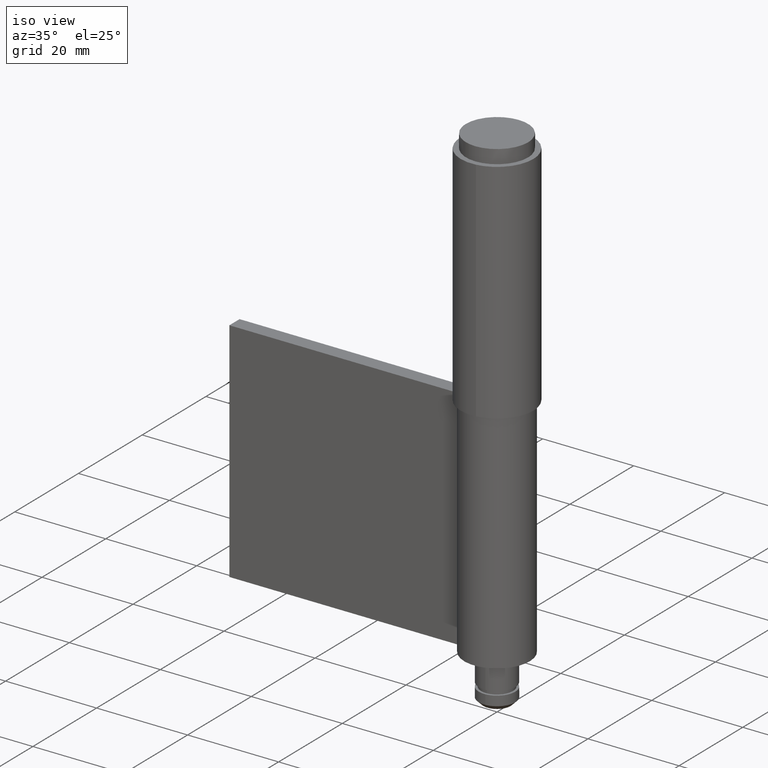
[diagram: clean part render]
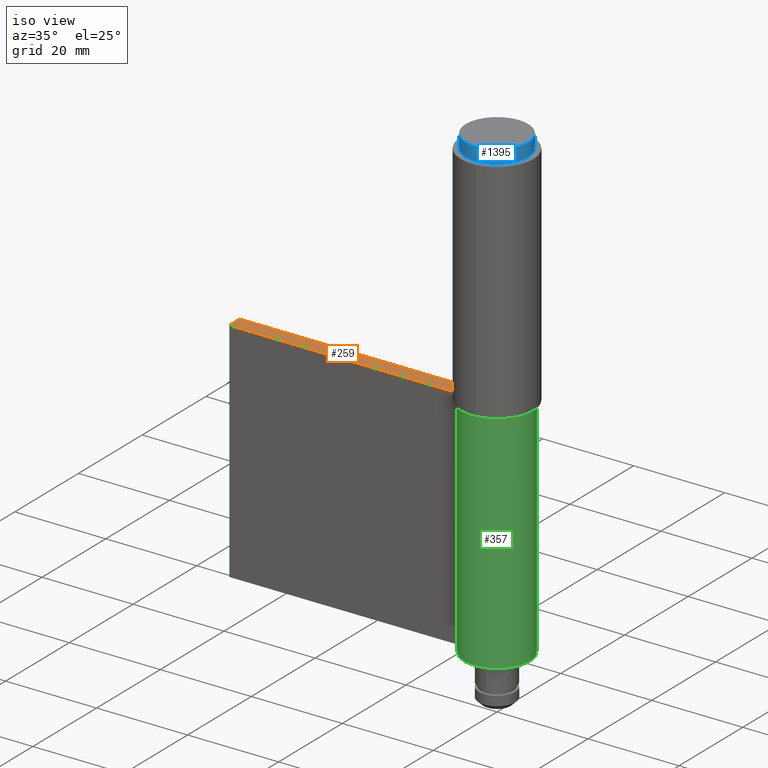
[diagram: same view with three faces highlighted in distinct colors, each labeled with its STEP entity id]
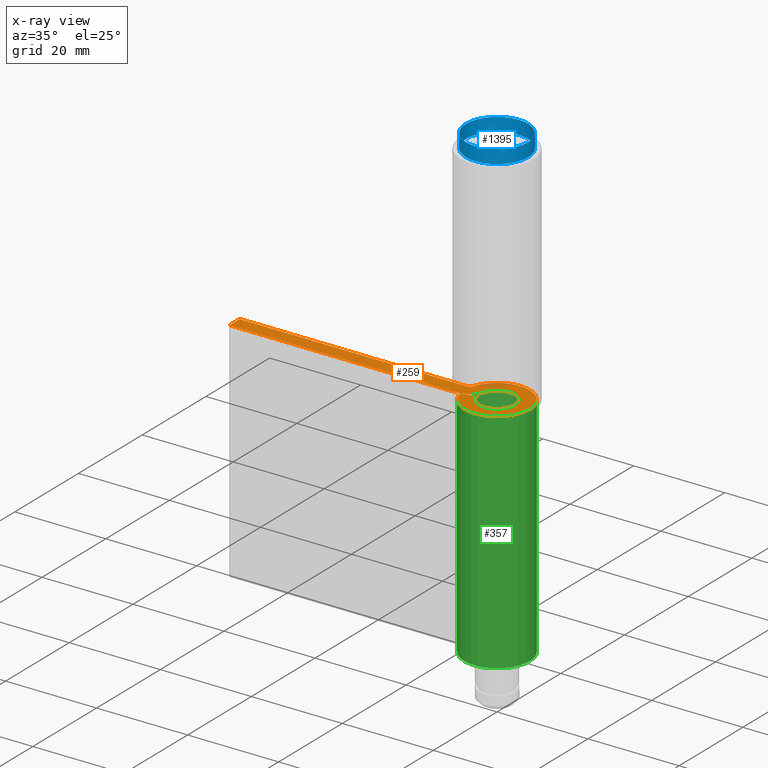
[diagram: x-ray of the same camera — body ghosted, the three highlighted faces saturated]
A machine part, iso view with three faces highlighted in distinct colors.
The next image is the same camera in x-ray (body ghosted, the three faces saturated) — at least one of them is partly hidden behind the body in this view.
Their STEP definitions:

[orange] entity #259 — the highlighted face is a freeform B-spline surface patch.
#152=CARTESIAN_POINT('',(-60.941293195075907,-7.917410930824219,60.0));
#153=CARTESIAN_POINT('',(10.432118169757750,-7.917410930824219,60.0));
#154=CARTESIAN_POINT('',(-60.941293195075907,7.888028291669615,60.0));
#155=CARTESIAN_POINT('',(10.432118169757750,7.888028291669615,60.0));
#156=B_SPLINE_SURFACE_WITH_KNOTS('',1,1,((#152,#154),(#153,#155)),.UNSPECIFIED.,.F.,.F.,.U.,(2,2),(2,2),(0.0,71.373411364833657),(0.0,15.805439222493840),.UNSPECIFIED.);
#157=CARTESIAN_POINT('',(-57.699996999999897,-1.599998000000000,60.0));
#158=VERTEX_POINT('',#157);
#159=CARTESIAN_POINT('',(-7.782682549319230,-1.599998000000000,60.0));
#160=VERTEX_POINT('',#159);
#161=CARTESIAN_POINT('',(-57.699996999999897,-1.599998000000000,60.0));
#162=CARTESIAN_POINT('',(-7.782682549319230,-1.599998000000000,60.0));
#163=QUASI_UNIFORM_CURVE('',1,(#161,#162),.UNSPECIFIED.,.F.,.U.);
#164=EDGE_CURVE('',#158,#160,#163,.T.);
#165=ORIENTED_EDGE('',*,*,#164,.T.);
#166=CARTESIAN_POINT('',(-3.793601311270450,1.268291167197346,60.0));
#167=VERTEX_POINT('',#166);
#168=CARTESIAN_POINT('',(-3.793601311270512,1.268291167197366,60.0));
#169=CARTESIAN_POINT('',(-4.753936112665260,-1.604178070194235,60.0));
#170=CARTESIAN_POINT('',(-7.782682549319230,-1.599997999999998,60.0));
#178=(BOUNDED_CURVE()B_SPLINE_CURVE(2,(#168,#169,#170),.UNSPECIFIED.,.F.,.U.)CURVE()GEOMETRIC_REPRESENTATION_ITEM()QUASI_UNIFORM_CURVE()RATIONAL_B_SPLINE_CURVE((1.0,0.811099203511080,1.0))REPRESENTATION_ITEM(''));
#179=EDGE_CURVE('',#167,#160,#178,.T.);
#180=ORIENTED_EDGE('',*,*,#179,.F.);
#181=CARTESIAN_POINT('',(-3.902154564155285,-0.879312093310240,60.0));
#182=VERTEX_POINT('',#181);
#183=CARTESIAN_POINT('',(-3.793601311270450,1.268291167197346,60.0));
#184=CARTESIAN_POINT('',(-2.687121172881582,4.577881124253930,60.0));
#185=CARTESIAN_POINT('',(0.741972256834321,3.930581218341711,60.0));
#186=CARTESIAN_POINT('',(4.171065686550227,3.283281312429491,60.0));
#187=CARTESIAN_POINT('',(3.994901805377227,-0.201921714993140,60.0));
#188=CARTESIAN_POINT('',(3.818737924204226,-3.687124742415772,60.0));
#189=CARTESIAN_POINT('',(0.341851068631430,-3.985363680097513,60.0));
#190=CARTESIAN_POINT('',(-3.135035786941367,-4.283602617779254,60.0));
#191=CARTESIAN_POINT('',(-3.902154564155285,-0.879312093310240,60.0));
#199=(BOUNDED_CURVE()B_SPLINE_CURVE(2,(#183,#184,#185,#186,#187,#188,#189,#190,#191),.UNSPECIFIED.,.F.,.U.)B_SPLINE_CURVE_WITH_KNOTS((3,2,2,2,3),(0.0,0.250000000000000,0.500000000000000,0.750000000000000,1.0),.UNSPECIFIED.)CURVE()GEOMETRIC_REPRESENTATION_ITEM()RATIONAL_B_SPLINE_CURVE((1.0,0.753541793139221,1.0,0.753541793139221,1.0,0.753541793139221,1.0,0.753541793139221,1.0))REPRESENTATION_ITEM(''));
#200=EDGE_CURVE('',#167,#182,#199,.T.);
#201=ORIENTED_EDGE('',*,*,#200,.T.);
#202=CARTESIAN_POINT('',(-7.023878215479560,-1.582761767958435,60.0));
#203=VERTEX_POINT('',#202);
#204=CARTESIAN_POINT('',(-3.902154564155285,-0.879312093310240,60.0));
#205=CARTESIAN_POINT('',(-7.023878215479560,-1.582761767958435,60.0));
#206=QUASI_UNIFORM_CURVE('',1,(#204,#205),.UNSPECIFIED.,.F.,.U.);
#207=EDGE_CURVE('',#182,#203,#206,.T.);
#208=ORIENTED_EDGE('',*,*,#207,.T.);
#209=CARTESIAN_POINT('',(-6.828487906865320,2.282926390796095,60.0));
#210=VERTEX_POINT('',#209);
#211=CARTESIAN_POINT('',(-6.828487906865321,2.282926390796094,60.0));
#212=CARTESIAN_POINT('',(-4.836832219476578,8.240191080014196,59.999999999999993));
#213=CARTESIAN_POINT('',(1.335537064383799,7.075050582833825,60.0));
#214=CARTESIAN_POINT('',(7.507906348244184,5.909910085653453,59.999999999999993));
#215=CARTESIAN_POINT('',(7.190820400486817,-0.363458344165383,60.0));
#216=CARTESIAN_POINT('',(6.873734452729448,-6.636826773984220,59.999999999999993));
#217=CARTESIAN_POINT('',(0.615339445430057,-7.173657182142027,60.0));
#218=CARTESIAN_POINT('',(-5.643055561869331,-7.710487590299833,59.999999999999993));
#219=CARTESIAN_POINT('',(-7.023878215479557,-1.582761767958434,60.0));
#227=(BOUNDED_CURVE()B_SPLINE_CURVE(2,(#211,#212,#213,#214,#215,#216,#217,#218,#219),.UNSPECIFIED.,.F.,.U.)B_SPLINE_CURVE_WITH_KNOTS((3,2,2,2,3),(0.0,0.250000000000000,0.500000000000000,0.750000000000000,1.0),.UNSPECIFIED.)CURVE()GEOMETRIC_REPRESENTATION_ITEM()RATIONAL_B_SPLINE_CURVE((1.0,0.753541797853065,1.0,0.753541797853065,1.0,0.753541797853065,1.0,0.753541797853065,1.0))REPRESENTATION_ITEM(''));
#228=EDGE_CURVE('',#210,#203,#227,.T.);
#229=ORIENTED_EDGE('',*,*,#228,.F.);
#230=CARTESIAN_POINT('',(-7.776886000000000,1.599998000000000,60.0));
#231=VERTEX_POINT('',#230);
#232=CARTESIAN_POINT('',(-6.828487906865320,2.282926390796095,60.0));
#233=CARTESIAN_POINT('',(-7.056804871374498,1.599998527259056,60.0));
#234=CARTESIAN_POINT('',(-7.776886000000000,1.599998000000000,60.0));
#242=(BOUNDED_CURVE()B_SPLINE_CURVE(2,(#232,#233,#234),.UNSPECIFIED.,.F.,.U.)CURVE()GEOMETRIC_REPRESENTATION_ITEM()QUASI_UNIFORM_CURVE()RATIONAL_B_SPLINE_CURVE((1.0,0.811502515005966,1.0))REPRESENTATION_ITEM(''));
#243=EDGE_CURVE('',#210,#231,#242,.T.);
#244=ORIENTED_EDGE('',*,*,#243,.T.);
#245=CARTESIAN_POINT('',(-57.699996999999897,1.599998000000000,60.0));
#246=VERTEX_POINT('',#245);
#247=CARTESIAN_POINT('',(-7.776886000000000,1.599998000000000,60.0));
#248=CARTESIAN_POINT('',(-57.699996999999897,1.599998000000000,60.0));
#249=QUASI_UNIFORM_CURVE('',1,(#247,#248),.UNSPECIFIED.,.F.,.U.);
#250=EDGE_CURVE('',#231,#246,#249,.T.);
#251=ORIENTED_EDGE('',*,*,#250,.T.);
#252=CARTESIAN_POINT('',(-57.699996999999897,1.599998000000000,60.0));
#253=CARTESIAN_POINT('',(-57.699996999999897,-1.599998000000000,60.0));
#254=QUASI_UNIFORM_CURVE('',1,(#252,#253),.UNSPECIFIED.,.F.,.U.);
#255=EDGE_CURVE('',#246,#158,#254,.T.);
#256=ORIENTED_EDGE('',*,*,#255,.T.);
#257=EDGE_LOOP('',(#165,#180,#201,#208,#229,#244,#251,#256));
#258=FACE_OUTER_BOUND('',#257,.T.);
#259=ADVANCED_FACE('',(#258),#156,.T.);

[blue] entity #1395 — the highlighted face is a freeform B-spline surface patch.
#1210=CARTESIAN_POINT('',(6.837395000000057,0.0,113.0));
#1211=VERTEX_POINT('',#1210);
#1212=CARTESIAN_POINT('',(-6.837394999999942,0.0,113.0));
#1213=VERTEX_POINT('',#1212);
#1214=CARTESIAN_POINT('',(6.837395000000057,0.0,113.0));
#1215=CARTESIAN_POINT('',(6.837395000000054,-6.837394999999999,113.0));
#1216=CARTESIAN_POINT('',(5.684342E-014,-6.837395000000000,113.0));
#1217=CARTESIAN_POINT('',(-6.837394999999941,-6.837394999999999,113.0));
#1218=CARTESIAN_POINT('',(-6.837394999999942,0.0,113.0));
#1226=(BOUNDED_CURVE()B_SPLINE_CURVE(2,(#1214,#1215,#1216,#1217,#1218),.UNSPECIFIED.,.F.,.U.)B_SPLINE_CURVE_WITH_KNOTS((3,2,3),(0.500000000000000,0.750000000000000,1.0),.UNSPECIFIED.)CURVE()GEOMETRIC_REPRESENTATION_ITEM()RATIONAL_B_SPLINE_CURVE((1.0,0.707106781186548,1.0,0.707106781186548,1.0))REPRESENTATION_ITEM(''));
#1227=EDGE_CURVE('',#1211,#1213,#1226,.T.);
#1229=CARTESIAN_POINT('',(-6.837394999999942,0.0,113.0));
#1230=CARTESIAN_POINT('',(-6.837394999999941,6.837394999999999,113.0));
#1231=CARTESIAN_POINT('',(5.684342E-014,6.837395000000000,113.0));
#1232=CARTESIAN_POINT('',(6.837395000000054,6.837394999999999,113.0));
#1233=CARTESIAN_POINT('',(6.837395000000057,0.0,113.0));
#1241=(BOUNDED_CURVE()B_SPLINE_CURVE(2,(#1229,#1230,#1231,#1232,#1233),.UNSPECIFIED.,.F.,.U.)B_SPLINE_CURVE_WITH_KNOTS((3,2,3),(0.0,0.250000000000000,0.500000000000000),.UNSPECIFIED.)CURVE()GEOMETRIC_REPRESENTATION_ITEM()RATIONAL_B_SPLINE_CURVE((1.0,0.707106781186548,1.0,0.707106781186548,1.0))REPRESENTATION_ITEM(''));
#1242=EDGE_CURVE('',#1213,#1211,#1241,.T.);
#1300=CARTESIAN_POINT('',(-6.837397165588673,0.0,110.0));
#1301=VERTEX_POINT('',#1300);
#1302=CARTESIAN_POINT('',(6.837397165588787,0.0,110.0));
#1303=VERTEX_POINT('',#1302);
#1304=CARTESIAN_POINT('',(-6.837397165588673,0.0,110.0));
#1305=CARTESIAN_POINT('',(-6.837397165588672,6.837397165588729,110.0));
#1306=CARTESIAN_POINT('',(5.684342E-014,6.837397165588730,110.0));
#1307=CARTESIAN_POINT('',(6.837397165588786,6.837397165588729,110.0));
#1308=CARTESIAN_POINT('',(6.837397165588787,0.0,110.0));
#1316=(BOUNDED_CURVE()B_SPLINE_CURVE(2,(#1304,#1305,#1306,#1307,#1308),.UNSPECIFIED.,.F.,.U.)B_SPLINE_CURVE_WITH_KNOTS((3,2,3),(0.0,0.250000000000000,0.500000000000000),.UNSPECIFIED.)CURVE()GEOMETRIC_REPRESENTATION_ITEM()RATIONAL_B_SPLINE_CURVE((1.0,0.707106781186548,1.0,0.707106781186548,1.0))REPRESENTATION_ITEM(''));
#1317=EDGE_CURVE('',#1301,#1303,#1316,.T.);
#1319=CARTESIAN_POINT('',(6.837397165588787,0.0,110.0));
#1320=CARTESIAN_POINT('',(6.837397165588786,-6.837397165588729,110.0));
#1321=CARTESIAN_POINT('',(5.684342E-014,-6.837397165588730,110.0));
#1322=CARTESIAN_POINT('',(-6.837397165588672,-6.837397165588729,110.0));
#1323=CARTESIAN_POINT('',(-6.837397165588673,0.0,110.0));
#1331=(BOUNDED_CURVE()B_SPLINE_CURVE(2,(#1319,#1320,#1321,#1322,#1323),.UNSPECIFIED.,.F.,.U.)B_SPLINE_CURVE_WITH_KNOTS((3,2,3),(0.500000000000000,0.750000000000000,1.0),.UNSPECIFIED.)CURVE()GEOMETRIC_REPRESENTATION_ITEM()RATIONAL_B_SPLINE_CURVE((1.0,0.707106781186548,1.0,0.707106781186548,1.0))REPRESENTATION_ITEM(''));
#1332=EDGE_CURVE('',#1303,#1301,#1331,.T.);
#1343=CARTESIAN_POINT('',(-4.166826266324718,-4.166826266324718,107.721757322175720));
#1344=CARTESIAN_POINT('',(-3.869966882065834,-5.159955842754445,108.489637305699470));
#1345=CARTESIAN_POINT('',(-1.693658975597973,-6.774635902391893,109.738095238095240));
#1346=CARTESIAN_POINT('',(1.693658975597975,-6.774635902391893,109.738095238095240));
#1347=CARTESIAN_POINT('',(3.869966882065837,-5.159955842754445,108.489637305699470));
#1348=CARTESIAN_POINT('',(4.166826266324723,-4.166826266324718,107.721757322175720));
#1349=CARTESIAN_POINT('',(-5.159955842754445,-3.869966882065834,108.489637305699470));
#1350=CARTESIAN_POINT('',(-5.080976926793920,-5.080976926793920,109.738095238095240));
#1351=CARTESIAN_POINT('',(-2.465028410028736,-7.395085230086206,112.123762376237620));
#1352=CARTESIAN_POINT('',(2.465028410028736,-7.395085230086206,112.123762376237620));
#1353=CARTESIAN_POINT('',(5.080976926793923,-5.080976926793920,109.738095238095240));
#1354=CARTESIAN_POINT('',(5.159955842754448,-3.869966882065834,108.489637305699470));
#1355=CARTESIAN_POINT('',(-6.774635902391893,-1.693658975597973,109.738095238095240));
#1356=CARTESIAN_POINT('',(-7.395085230086211,-2.465028410028736,112.123762376237620));
#1357=CARTESIAN_POINT('',(-4.526688534780054,-4.526688534780053,118.500000000000000));
#1358=CARTESIAN_POINT('',(4.526688534780049,-4.526688534780053,118.500000000000000));
#1359=CARTESIAN_POINT('',(7.395085230086206,-2.465028410028736,112.123762376237620));
#1360=CARTESIAN_POINT('',(6.774635902391896,-1.693658975597973,109.738095238095240));
#1361=CARTESIAN_POINT('',(-6.774635902391893,1.693658975597975,109.738095238095240));
#1362=CARTESIAN_POINT('',(-7.395085230086211,2.465028410028737,112.123762376237620));
#1363=CARTESIAN_POINT('',(-4.526688534780054,4.526688534780050,118.500000000000000));
#1364=CARTESIAN_POINT('',(4.526688534780049,4.526688534780050,118.500000000000000));
#1365=CARTESIAN_POINT('',(7.395085230086206,2.465028410028737,112.123762376237620));
#1366=CARTESIAN_POINT('',(6.774635902391896,1.693658975597975,109.738095238095240));
#1367=CARTESIAN_POINT('',(-5.159955842754445,3.869966882065837,108.489637305699470));
#1368=CARTESIAN_POINT('',(-5.080976926793920,5.080976926793923,109.738095238095240));
#1369=CARTESIAN_POINT('',(-2.465028410028736,7.395085230086206,112.123762376237620));
#1370=CARTESIAN_POINT('',(2.465028410028736,7.395085230086206,112.123762376237620));
#1371=CARTESIAN_POINT('',(5.080976926793923,5.080976926793923,109.738095238095240));
#1372=CARTESIAN_POINT('',(5.159955842754448,3.869966882065837,108.489637305699470));
#1373=CARTESIAN_POINT('',(-4.166826266324718,4.166826266324721,107.721757322175720));
#1374=CARTESIAN_POINT('',(-3.869966882065834,5.159955842754448,108.489637305699470));
#1375=CARTESIAN_POINT('',(-1.693658975597973,6.774635902391896,109.738095238095240));
#1376=CARTESIAN_POINT('',(1.693658975597975,6.774635902391896,109.738095238095240));
#1377=CARTESIAN_POINT('',(3.869966882065837,5.159955842754448,108.489637305699470));
#1378=CARTESIAN_POINT('',(4.166826266324723,4.166826266324721,107.721757322175720));
#1386=(BOUNDED_SURFACE()B_SPLINE_SURFACE(2,2,((#1343,#1349,#1355,#1361,#1367,#1373),(#1344,#1350,#1356,#1362,#1368,#1374),(#1345,#1351,#1357,#1363,#1369,#1375),(#1346,#1352,#1358,#1364,#1370,#1376),(#1347,#1353,#1359,#1365,#1371,#1377),(#1348,#1354,#1360,#1366,#1372,#1378)),.UNSPECIFIED.,.F.,.F.,.U.)B_SPLINE_SURFACE_WITH_KNOTS((3,1,1,1,3),(3,1,1,1,3),(0.0,7.487755471064719,14.975510942129439,22.463266413194159,29.951021884258878),(0.0,7.487755471064719,14.975510942129439,22.463266413194159,29.951021884258878),.UNSPECIFIED.)GEOMETRIC_REPRESENTATION_ITEM()RATIONAL_B_SPLINE_SURFACE(((4.345454545454560,3.509090909090920,2.672727272727280,2.672727272727280,3.509090909090920,4.345454545454560),(3.509090909090920,2.672727272727280,1.836363636363640,1.836363636363640,2.672727272727280,3.509090909090920),(2.672727272727280,1.836363636363640,1.0,1.0,1.836363636363640,2.672727272727280),(2.672727272727280,1.836363636363640,1.0,1.0,1.836363636363640,2.672727272727280),(3.509090909090920,2.672727272727280,1.836363636363640,1.836363636363640,2.672727272727280,3.509090909090920),(4.345454545454560,3.509090909090920,2.672727272727280,2.672727272727280,3.509090909090920,4.345454545454560)))REPRESENTATION_ITEM('')SURFACE());
#1387=ORIENTED_EDGE('',*,*,#1332,.F.);
#1388=ORIENTED_EDGE('',*,*,#1317,.F.);
#1389=EDGE_LOOP('',(#1387,#1388));
#1390=FACE_OUTER_BOUND('',#1389,.T.);
#1391=ORIENTED_EDGE('',*,*,#1242,.T.);
#1392=ORIENTED_EDGE('',*,*,#1227,.T.);
#1393=EDGE_LOOP('',(#1391,#1392));
#1394=FACE_BOUND('',#1393,.T.);
#1395=ADVANCED_FACE('',(#1390,#1394),#1386,.T.);

[green] entity #357 — the highlighted face is a freeform B-spline surface patch.
#72=CARTESIAN_POINT('',(-6.828487906865320,2.282926390796095,10.0));
#73=VERTEX_POINT('',#72);
#87=CARTESIAN_POINT('',(-7.023878215479560,-1.582761767958435,10.0));
#88=VERTEX_POINT('',#87);
#89=CARTESIAN_POINT('',(-6.828487906865321,2.282926390796094,10.0));
#90=CARTESIAN_POINT('',(-4.836832219476578,8.240191080014196,10.0));
#91=CARTESIAN_POINT('',(1.335537064383799,7.075050582833825,10.0));
#92=CARTESIAN_POINT('',(7.507906348244184,5.909910085653453,10.0));
#93=CARTESIAN_POINT('',(7.190820400486817,-0.363458344165383,10.0));
#94=CARTESIAN_POINT('',(6.873734452729448,-6.636826773984220,10.0));
#95=CARTESIAN_POINT('',(0.615339445430057,-7.173657182142027,10.0));
#96=CARTESIAN_POINT('',(-5.643055561869331,-7.710487590299833,10.0));
#97=CARTESIAN_POINT('',(-7.023878215479557,-1.582761767958434,10.0));
#105=(BOUNDED_CURVE()B_SPLINE_CURVE(2,(#89,#90,#91,#92,#93,#94,#95,#96,#97),.UNSPECIFIED.,.F.,.U.)B_SPLINE_CURVE_WITH_KNOTS((3,2,2,2,3),(0.0,0.250000000000000,0.500000000000000,0.750000000000000,1.0),.UNSPECIFIED.)CURVE()GEOMETRIC_REPRESENTATION_ITEM()RATIONAL_B_SPLINE_CURVE((1.0,0.753541797853065,1.0,0.753541797853065,1.0,0.753541797853065,1.0,0.753541797853065,1.0))REPRESENTATION_ITEM(''));
#106=EDGE_CURVE('',#73,#88,#105,.T.);
#202=CARTESIAN_POINT('',(-7.023878215479560,-1.582761767958435,60.0));
#203=VERTEX_POINT('',#202);
#209=CARTESIAN_POINT('',(-6.828487906865320,2.282926390796095,60.0));
#210=VERTEX_POINT('',#209);
#211=CARTESIAN_POINT('',(-6.828487906865321,2.282926390796094,60.0));
#212=CARTESIAN_POINT('',(-4.836832219476578,8.240191080014196,59.999999999999993));
#213=CARTESIAN_POINT('',(1.335537064383799,7.075050582833825,60.0));
#214=CARTESIAN_POINT('',(7.507906348244184,5.909910085653453,59.999999999999993));
#215=CARTESIAN_POINT('',(7.190820400486817,-0.363458344165383,60.0));
#216=CARTESIAN_POINT('',(6.873734452729448,-6.636826773984220,59.999999999999993));
#217=CARTESIAN_POINT('',(0.615339445430057,-7.173657182142027,60.0));
#218=CARTESIAN_POINT('',(-5.643055561869331,-7.710487590299833,59.999999999999993));
#219=CARTESIAN_POINT('',(-7.023878215479557,-1.582761767958434,60.0));
#227=(BOUNDED_CURVE()B_SPLINE_CURVE(2,(#211,#212,#213,#214,#215,#216,#217,#218,#219),.UNSPECIFIED.,.F.,.U.)B_SPLINE_CURVE_WITH_KNOTS((3,2,2,2,3),(0.0,0.250000000000000,0.500000000000000,0.750000000000000,1.0),.UNSPECIFIED.)CURVE()GEOMETRIC_REPRESENTATION_ITEM()RATIONAL_B_SPLINE_CURVE((1.0,0.753541797853065,1.0,0.753541797853065,1.0,0.753541797853065,1.0,0.753541797853065,1.0))REPRESENTATION_ITEM(''));
#228=EDGE_CURVE('',#210,#203,#227,.T.);
#313=CARTESIAN_POINT('',(-6.828487906865320,2.282926390796095,60.0));
#314=CARTESIAN_POINT('',(-6.828487906865320,2.282926390796095,10.0));
#315=QUASI_UNIFORM_CURVE('',1,(#313,#314),.UNSPECIFIED.,.F.,.U.);
#316=EDGE_CURVE('',#210,#73,#315,.T.);
#321=CARTESIAN_POINT('',(-7.062903180823911,-1.398355698063495,61.250000000000007));
#322=CARTESIAN_POINT('',(-7.062903180823911,-1.398355698063495,8.718750000000000));
#323=CARTESIAN_POINT('',(-5.820293368831077,-7.674607731649264,61.250000000000007));
#324=CARTESIAN_POINT('',(-5.820293368831077,-7.674607731649264,8.718750000000000));
#325=CARTESIAN_POINT('',(0.558507676979370,-7.178305452873620,61.250000000000007));
#326=CARTESIAN_POINT('',(0.558507676979370,-7.178305452873620,8.718750000000000));
#327=CARTESIAN_POINT('',(6.937308722789816,-6.682003174097977,61.250000000000007));
#328=CARTESIAN_POINT('',(6.937308722789816,-6.682003174097977,8.718750000000000));
#329=CARTESIAN_POINT('',(7.194194258448767,-0.289082984112843,61.250000000000007));
#330=CARTESIAN_POINT('',(7.194194258448767,-0.289082984112843,8.718750000000000));
#331=CARTESIAN_POINT('',(7.451079794107717,6.103837205872292,61.250000000000007));
#332=CARTESIAN_POINT('',(7.451079794107717,6.103837205872292,8.718750000000000));
#333=CARTESIAN_POINT('',(1.132666062909102,7.110349329669681,61.250000000000007));
#334=CARTESIAN_POINT('',(1.132666062909102,7.110349329669681,8.718750000000000));
#335=CARTESIAN_POINT('',(-5.185747668289513,8.116861453467070,61.250000000000007));
#336=CARTESIAN_POINT('',(-5.185747668289513,8.116861453467070,8.718750000000000));
#337=CARTESIAN_POINT('',(-6.927933016002363,1.960546894563750,61.250000000000007));
#338=CARTESIAN_POINT('',(-6.927933016002363,1.960546894563750,8.718750000000000));
#346=(BOUNDED_SURFACE()B_SPLINE_SURFACE(1,2,((#321,#323,#325,#327,#329,#331,#333,#335,#337),(#322,#324,#326,#328,#330,#332,#334,#336,#338)),.UNSPECIFIED.,.F.,.F.,.U.)B_SPLINE_SURFACE_WITH_KNOTS((2,2),(3,2,2,2,3),(0.0,52.531250000000007),(0.0,10.947284151824880,21.894568303649748,32.841852455474630,43.789136607299497),.UNSPECIFIED.)GEOMETRIC_REPRESENTATION_ITEM()RATIONAL_B_SPLINE_SURFACE(((1.0,0.747508326862597,1.0,0.747508326862597,1.0,0.747508326862597,1.0,0.747508326862597,1.0),(1.0,0.747508326862597,1.0,0.747508326862597,1.0,0.747508326862597,1.0,0.747508326862597,1.0)))REPRESENTATION_ITEM('')SURFACE());
#347=ORIENTED_EDGE('',*,*,#106,.F.);
#348=ORIENTED_EDGE('',*,*,#316,.F.);
#349=ORIENTED_EDGE('',*,*,#228,.T.);
#350=CARTESIAN_POINT('',(-7.023878215479560,-1.582761767958435,60.0));
#351=CARTESIAN_POINT('',(-7.023878215479560,-1.582761767958435,10.0));
#352=QUASI_UNIFORM_CURVE('',1,(#350,#351),.UNSPECIFIED.,.F.,.U.);
#353=EDGE_CURVE('',#203,#88,#352,.T.);
#354=ORIENTED_EDGE('',*,*,#353,.T.);
#355=EDGE_LOOP('',(#347,#348,#349,#354));
#356=FACE_OUTER_BOUND('',#355,.T.);
#357=ADVANCED_FACE('',(#356),#346,.T.);